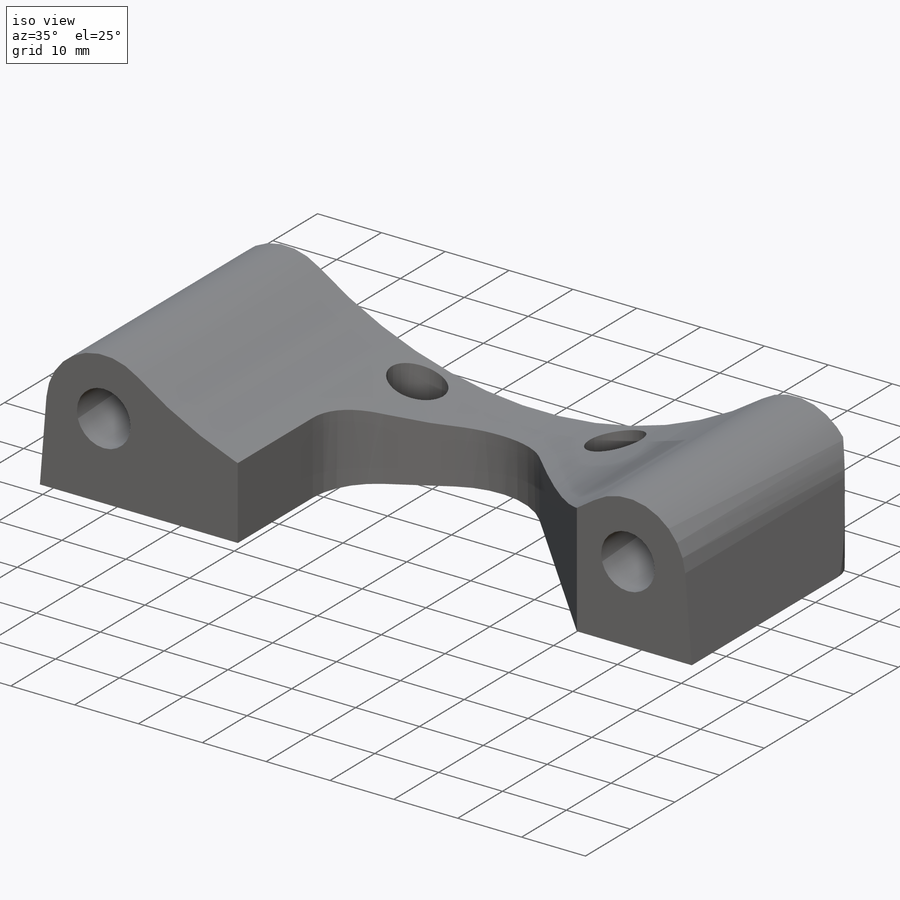
[diagram: iso view]
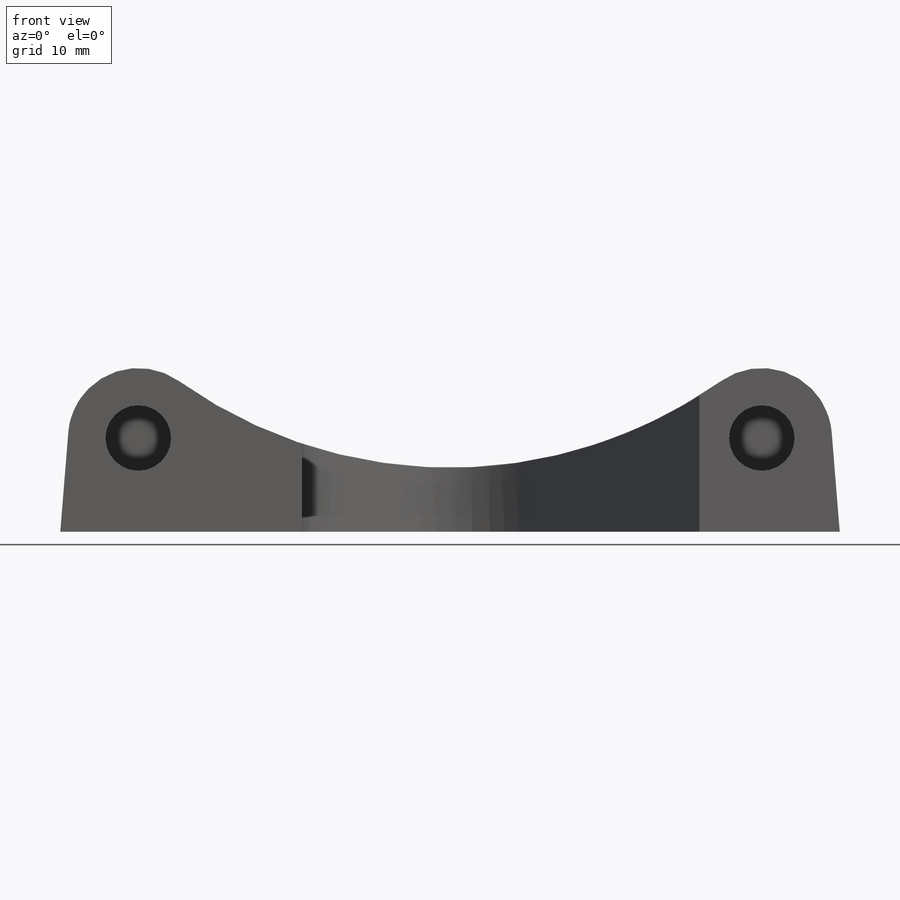
[diagram: front view]
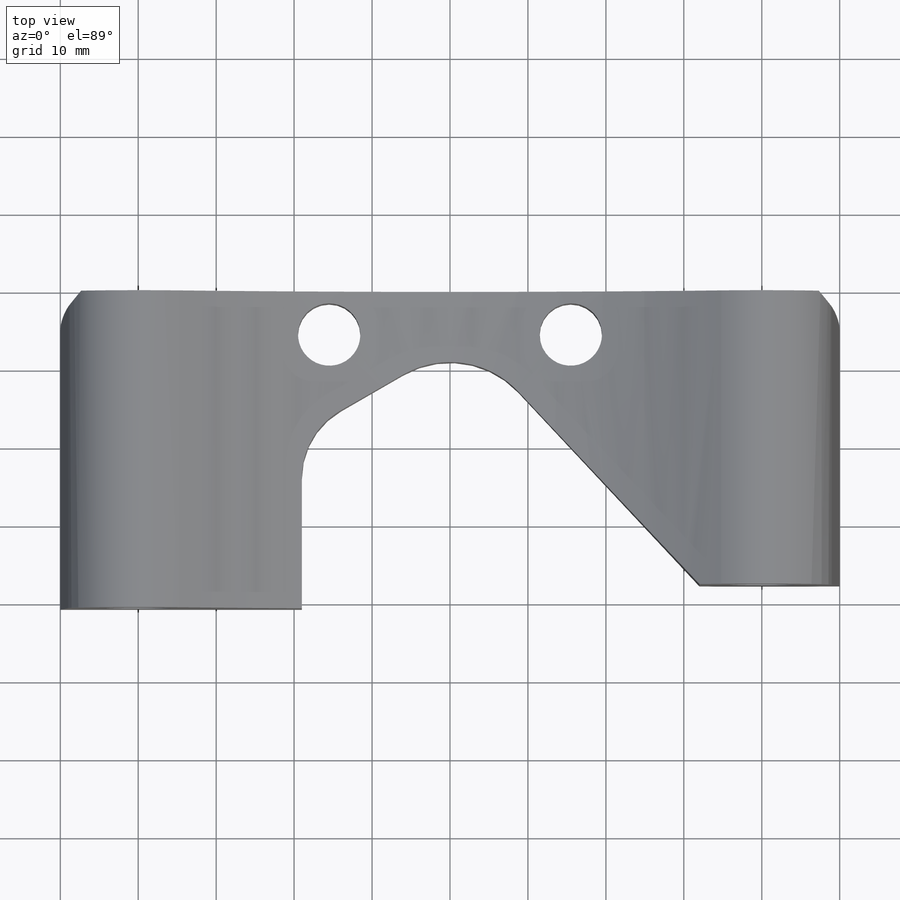
[diagram: top view]
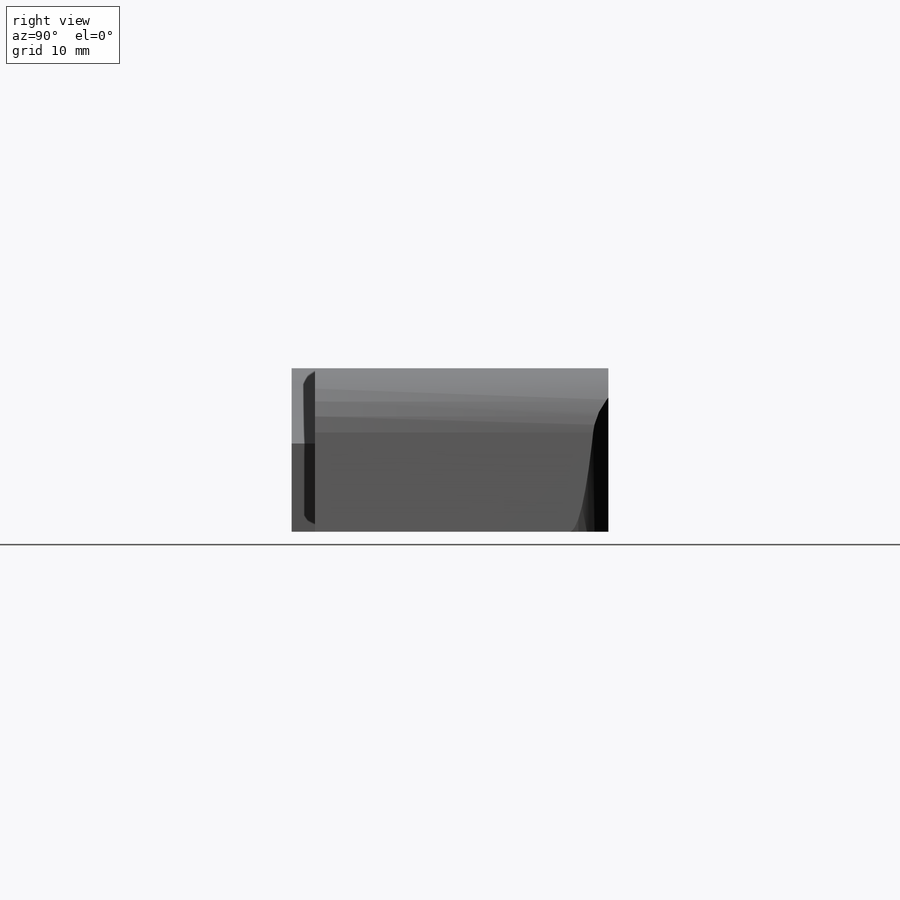
[diagram: right view]
SOLIDWORKS PART (.sldprt)
format: sldprt  version: not decoded by parser v0  size: 272,384 bytes
history: native  units: mm
features: sketch x5, cut_extrude x3, extrude x2, material x1, chamfer x1 (+11 scaffold rows collapsed)
feature tree (23):
  scaffold x11  (default folders/planes/origin — collapsed)
  material  "Material <not specified>"
  sketch  "Sketch1"  dims[D4=8.4mm D5=18.0mm D6=60.0mm D1=12.0mm D2=100.0mm D3=80.0mm]
  extrude  "Boss-Extrude1"  Depth=40.65mm
  sketch  "Sketch2"
  extrude  "Boss-Extrude2"  Depth=18mm
  sketch  "Sketch3"  dims[c1.D2=24.0mm c1.D7=8.0mm c1.D11=8.0mm c1.D12=10.0mm c1.D1=22.0mm c1.D3=50.0mm c2.D1=21.0mm c2.D4=31.0mm c2.D5=15.5mm c2.D6=15.5mm c2.D8=18.0mm c2.D9=31.0mm c2.D10=15.5mm c2.D11=100.0mm c3.D11=30.0deg c3.D8=3.0mm c3.D13=18.0mm]
  cut_extrude  "Cut-Extrude1"  [1 undecoded]
  sketch  "Sketch4"  dims[c1.D3=5.2mm c1.D1=13.0mm c1.D2=5.0mm c1.D4=32.0mm c1.D5=32.0mm c1.D6=5.0mm c1.D7=5.0mm c2.D4=18.0mm c2.D5=18.0mm]
  cut_extrude  "Cut-Extrude2"  Depth=6mm
  chamfer  "Chamfer1"  Distance=1mm Angle=45deg
  sketch  "Sketch5"  dims[c1.D1=5.0mm c2.D1=40.0deg c2.D2=~2.76661mm c3.D2=40.0deg]
  cut_extrude  "Cut-Extrude3"  [1 undecoded]
decode coverage: 8 of 11 modeling features carry decoded parameters
note: ~ marks probable driven/reference dimensions
note: 2 parameter values undecoded
note: suppression state not decoded; provenance and decode notes live in map.json
